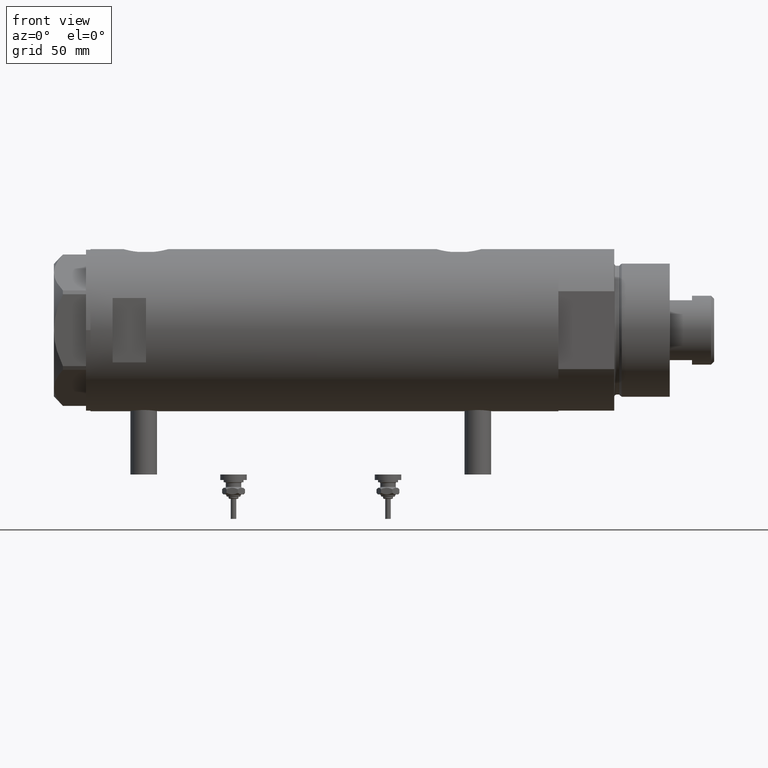
[diagram: clean part render]
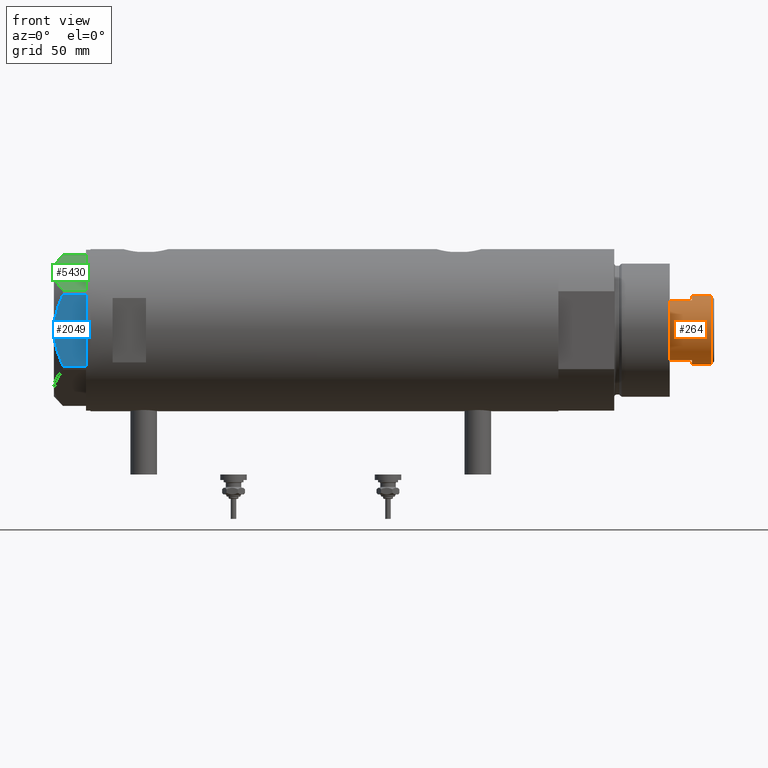
[diagram: same view with three faces highlighted in distinct colors, each labeled with its STEP entity id]
A machine part, front view with three faces highlighted in distinct colors.
Their STEP definitions:

[orange] entity #264 — the highlighted cylindrical surface (edge-blend (fillet) strip) has radius 15.5 mm, axis along (-1, -0, 0).
#187 = LINE ( 'NONE', #1136, #1697 ) ;
#191 = EDGE_CURVE ( 'NONE', #1009, #4470, #858, .T. ) ;
#217 = VECTOR ( 'NONE', #3174, 1000.000000000000000 ) ;
#255 = CIRCLE ( 'NONE', #645, 15.49999999999999822 ) ;
#264 = ADVANCED_FACE ( 'NONE', ( #2377 ), #2811, .T. ) ;
#346 = EDGE_CURVE ( 'NONE', #4959, #5789, #2402, .T. ) ;
#488 = CARTESIAN_POINT ( 'NONE',  ( -15.50000000000000178, 0.000000000000000000, 245.0000000000000284 ) ) ;
#508 = VECTOR ( 'NONE', #2057, 1000.000000000000000 ) ;
#544 = CARTESIAN_POINT ( 'NONE',  ( 0.000000000000000000, 0.000000000000000000, 245.0000000000000284 ) ) ;
#609 = DIRECTION ( 'NONE',  ( -0.000000000000000000, -0.000000000000000000, -1.000000000000000000 ) ) ;
#645 = AXIS2_PLACEMENT_3D ( 'NONE', #1828, #5411, #1319 ) ;
#812 = DIRECTION ( 'NONE',  ( 0.000000000000000000, 0.000000000000000000, 1.000000000000000000 ) ) ;
#858 = LINE ( 'NONE', #883, #217 ) ;
#883 = CARTESIAN_POINT ( 'NONE',  ( 15.49999999999999822, 1.898202538678397163E-15, 245.0000000000000284 ) ) ;
#914 = AXIS2_PLACEMENT_3D ( 'NONE', #5199, #1039, #2525 ) ;
#955 = CARTESIAN_POINT ( 'NONE',  ( 15.50000000000000178, 1.898202538678397557E-15, 245.0000000000000284 ) ) ;
#988 = DIRECTION ( 'NONE',  ( 0.000000000000000000, 0.000000000000000000, 1.000000000000000000 ) ) ;
#1009 = VERTEX_POINT ( 'NONE', #4589 ) ;
#1039 = DIRECTION ( 'NONE',  ( 0.000000000000000000, 0.000000000000000000, -1.000000000000000000 ) ) ;
#1068 = VERTEX_POINT ( 'NONE', #4780 ) ;
#1136 = CARTESIAN_POINT ( 'NONE',  ( -15.49999999999999822, 0.000000000000000000, 245.0000000000000284 ) ) ;
#1319 = DIRECTION ( 'NONE',  ( 1.000000000000000000, 0.000000000000000000, 0.000000000000000000 ) ) ;
#1387 = VERTEX_POINT ( 'NONE', #488 ) ;
#1686 = ORIENTED_EDGE ( 'NONE', *, *, #2953, .T. ) ;
#1697 = VECTOR ( 'NONE', #3334, 1000.000000000000000 ) ;
#1733 = EDGE_LOOP ( 'NONE', ( #4586, #3290, #1686, #4035, #2615, #2814, #3959, #5443 ) ) ;
#1782 = DIRECTION ( 'NONE',  ( 1.000000000000000000, 0.000000000000000000, 0.000000000000000000 ) ) ;
#1828 = CARTESIAN_POINT ( 'NONE',  ( 0.000000000000000000, 0.000000000000000000, 235.0000000000000284 ) ) ;
#2057 = DIRECTION ( 'NONE',  ( -0.000000000000000000, -0.000000000000000000, -1.000000000000000000 ) ) ;
#2377 = FACE_OUTER_BOUND ( 'NONE', #1733, .T. ) ;
#2402 = LINE ( 'NONE', #2946, #508 ) ;
#2525 = DIRECTION ( 'NONE',  ( 1.000000000000000000, 0.000000000000000000, 0.000000000000000000 ) ) ;
#2615 = ORIENTED_EDGE ( 'NONE', *, *, #346, .T. ) ;
#2647 = CIRCLE ( 'NONE', #914, 15.49999999999999822 ) ;
#2669 = CARTESIAN_POINT ( 'NONE',  ( 0.000000000000000000, 0.000000000000000000, 245.0000000000000284 ) ) ;
#2811 = CYLINDRICAL_SURFACE ( 'NONE', #4127, 15.49999999999999822 ) ;
#2814 = ORIENTED_EDGE ( 'NONE', *, *, #5308, .T. ) ;
#2917 = CARTESIAN_POINT ( 'NONE',  ( -15.49999999999999822, 0.000000000000000000, 253.5999999999999943 ) ) ;
#2946 = CARTESIAN_POINT ( 'NONE',  ( -13.48630416385452691, -7.640000000000001457, 245.0000000000000284 ) ) ;
#2953 = EDGE_CURVE ( 'NONE', #5240, #1387, #187, .T. ) ;
#3067 = EDGE_CURVE ( 'NONE', #1009, #5240, #2647, .T. ) ;
#3174 = DIRECTION ( 'NONE',  ( -0.000000000000000000, -0.000000000000000000, -1.000000000000000000 ) ) ;
#3266 = LINE ( 'NONE', #3754, #3528 ) ;
#3290 = ORIENTED_EDGE ( 'NONE', *, *, #3067, .T. ) ;
#3301 = AXIS2_PLACEMENT_3D ( 'NONE', #5023, #988, #1782 ) ;
#3334 = DIRECTION ( 'NONE',  ( -0.000000000000000000, -0.000000000000000000, -1.000000000000000000 ) ) ;
#3528 = VECTOR ( 'NONE', #609, 1000.000000000000000 ) ;
#3610 = VERTEX_POINT ( 'NONE', #4372 ) ;
#3738 = EDGE_CURVE ( 'NONE', #1387, #4959, #5909, .T. ) ;
#3754 = CARTESIAN_POINT ( 'NONE',  ( 13.48630416385453046, -7.639999999999995239, 245.0000000000000284 ) ) ;
#3839 = DIRECTION ( 'NONE',  ( -1.000000000000000000, 0.000000000000000000, 0.000000000000000000 ) ) ;
#3871 = EDGE_CURVE ( 'NONE', #3610, #4470, #4739, .T. ) ;
#3959 = ORIENTED_EDGE ( 'NONE', *, *, #5905, .F. ) ;
#4004 = DIRECTION ( 'NONE',  ( 1.000000000000000000, 0.000000000000000000, 0.000000000000000000 ) ) ;
#4035 = ORIENTED_EDGE ( 'NONE', *, *, #3738, .T. ) ;
#4044 = CARTESIAN_POINT ( 'NONE',  ( -13.48630416385452335, -7.640000000000004121, 245.0000000000000284 ) ) ;
#4057 = AXIS2_PLACEMENT_3D ( 'NONE', #2669, #812, #4004 ) ;
#4127 = AXIS2_PLACEMENT_3D ( 'NONE', #544, #4731, #3839 ) ;
#4372 = CARTESIAN_POINT ( 'NONE',  ( 13.48630416385453046, -7.639999999999995239, 245.0000000000000284 ) ) ;
#4470 = VERTEX_POINT ( 'NONE', #955 ) ;
#4586 = ORIENTED_EDGE ( 'NONE', *, *, #191, .F. ) ;
#4589 = CARTESIAN_POINT ( 'NONE',  ( 15.49999999999999822, 1.898202538678397163E-15, 253.5999999999999943 ) ) ;
#4731 = DIRECTION ( 'NONE',  ( -0.000000000000000000, -0.000000000000000000, -1.000000000000000000 ) ) ;
#4739 = CIRCLE ( 'NONE', #3301, 15.50000000000000000 ) ;
#4780 = CARTESIAN_POINT ( 'NONE',  ( 13.48630416385452691, -7.639999999999800728, 235.0000000000000284 ) ) ;
#4959 = VERTEX_POINT ( 'NONE', #4044 ) ;
#5023 = CARTESIAN_POINT ( 'NONE',  ( 0.000000000000000000, 0.000000000000000000, 245.0000000000000284 ) ) ;
#5199 = CARTESIAN_POINT ( 'NONE',  ( 0.000000000000000000, 0.000000000000000000, 253.5999999999999943 ) ) ;
#5240 = VERTEX_POINT ( 'NONE', #2917 ) ;
#5308 = EDGE_CURVE ( 'NONE', #5789, #1068, #255, .T. ) ;
#5411 = DIRECTION ( 'NONE',  ( 0.000000000000000000, 0.000000000000000000, 1.000000000000000000 ) ) ;
#5443 = ORIENTED_EDGE ( 'NONE', *, *, #3871, .T. ) ;
#5789 = VERTEX_POINT ( 'NONE', #5918 ) ;
#5905 = EDGE_CURVE ( 'NONE', #3610, #1068, #3266, .T. ) ;
#5909 = CIRCLE ( 'NONE', #4057, 15.50000000000000000 ) ;
#5918 = CARTESIAN_POINT ( 'NONE',  ( -13.48630416385452513, -7.639999999999807834, 235.0000000000000284 ) ) ;

[blue] entity #2049 — the highlighted planar face has unit normal (-0, 1, 0).
#67 = VERTEX_POINT ( 'NONE', #373 ) ;
#137 = EDGE_LOOP ( 'NONE', ( #4267, #5381, #244, #443, #3994 ) ) ;
#198 = CARTESIAN_POINT ( 'NONE',  ( -30.00000000000000000, -6.973771051792319042, 13.72753822183687511 ) ) ;
#244 = ORIENTED_EDGE ( 'NONE', *, *, #1064, .T. ) ;
#267 = CARTESIAN_POINT ( 'NONE',  ( -30.00000000000000711, 8.981118657900116986, 13.19130745470829247 ) ) ;
#287 = CARTESIAN_POINT ( 'NONE',  ( -29.99999999999999289, -15.56759648729806322, 10.70591879357992227 ) ) ;
#373 = CARTESIAN_POINT ( 'NONE',  ( -30.00000000000000000, -16.20050807568876294, 10.40518423703603901 ) ) ;
#443 = ORIENTED_EDGE ( 'NONE', *, *, #4907, .T. ) ;
#529 = EDGE_CURVE ( 'NONE', #2868, #3493, #597, .T. ) ;
#554 = CARTESIAN_POINT ( 'NONE',  ( -30.00000000000000000, 16.20050807568875584, 10.40518423703603546 ) ) ;
#597 = LINE ( 'NONE', #4239, #1008 ) ;
#687 = CARTESIAN_POINT ( 'NONE',  ( -29.99999999999999645, -2.827567415490778835, 14.37523681947611109 ) ) ;
#771 = CARTESIAN_POINT ( 'NONE',  ( -30.00000000000001421, 14.93680064777130312, 11.00564802993687508 ) ) ;
#900 = CARTESIAN_POINT ( 'NONE',  ( -29.99999999999999289, -14.92797448277034533, 10.99622797424084553 ) ) ;
#1000 = VERTEX_POINT ( 'NONE', #3674 ) ;
#1008 = VECTOR ( 'NONE', #3742, 1000.000000000000000 ) ;
#1064 = EDGE_CURVE ( 'NONE', #3493, #1000, #2448, .T. ) ;
#1098 = DIRECTION ( 'NONE',  ( 1.000000000000000000, 0.000000000000000000, -0.000000000000000000 ) ) ;
#1122 = CARTESIAN_POINT ( 'NONE',  ( -30.00000000000000000, -3.526431665117130798, 14.30125973663612626 ) ) ;
#1181 = CARTESIAN_POINT ( 'NONE',  ( -29.99999999999999289, -13.63320717147166405, 11.55272916346384804 ) ) ;
#1366 = CARTESIAN_POINT ( 'NONE',  ( -30.00000000000000000, 16.20050807568875584, 0.000000000000000000 ) ) ;
#1604 = VERTEX_POINT ( 'NONE', #2393 ) ;
#1654 = CARTESIAN_POINT ( 'NONE',  ( -30.00000000000000000, 11.66725319103952607, 12.31690447555093293 ) ) ;
#2003 = VECTOR ( 'NONE', #5211, 1000.000000000000000 ) ;
#2010 = FACE_OUTER_BOUND ( 'NONE', #137, .T. ) ;
#2049 = ADVANCED_FACE ( 'NONE', ( #2010 ), #5263, .F. ) ;
#2050 = CARTESIAN_POINT ( 'NONE',  ( -30.00000000000000355, -1.418661615092686290, 14.47469700449902952 ) ) ;
#2177 = AXIS2_PLACEMENT_3D ( 'NONE', #5200, #1098, #2405 ) ;
#2393 = CARTESIAN_POINT ( 'NONE',  ( -30.00000000000000000, 0.000000000000000000, 14.50000000000000000 ) ) ;
#2405 = DIRECTION ( 'NONE',  ( -0.000000000000000000, 0.000000000000000000, -1.000000000000000000 ) ) ;
#2448 = LINE ( 'NONE', #5740, #4242 ) ;
#2516 = CARTESIAN_POINT ( 'NONE',  ( -30.00000000000000000, -11.00230860792644982, 12.56933207488871673 ) ) ;
#2611 = LINE ( 'NONE', #3851, #2003 ) ;
#2713 = CARTESIAN_POINT ( 'NONE',  ( -30.00000000000000355, 13.64854889245356695, 11.56384586935411996 ) ) ;
#2868 = VERTEX_POINT ( 'NONE', #554 ) ;
#3451 = CARTESIAN_POINT ( 'NONE',  ( -30.00000000000000355, 10.99748736931232607, 12.55407623651775495 ) ) ;
#3493 = VERTEX_POINT ( 'NONE', #1366 ) ;
#3674 = CARTESIAN_POINT ( 'NONE',  ( -30.00000000000000000, -16.20050807568876294, 0.000000000000000000 ) ) ;
#3742 = DIRECTION ( 'NONE',  ( 0.000000000000000000, 0.000000000000000000, -1.000000000000000000 ) ) ;
#3851 = CARTESIAN_POINT ( 'NONE',  ( -30.00000000000000000, -16.20050807568876294, 14.50000000000000000 ) ) ;
#3927 = CARTESIAN_POINT ( 'NONE',  ( -30.00000000000000000, 5.593935073701701732, 14.09487059093540573 ) ) ;
#3994 = ORIENTED_EDGE ( 'NONE', *, *, #5436, .F. ) ;
#4203 = CARTESIAN_POINT ( 'NONE',  ( -30.00000000000000000, 0.000000000000000000, 14.50000000000000000 ) ) ;
#4239 = CARTESIAN_POINT ( 'NONE',  ( -30.00000000000000000, 16.20050807568875584, 14.50000000000000000 ) ) ;
#4242 = VECTOR ( 'NONE', #5701, 1000.000000000000000 ) ;
#4267 = ORIENTED_EDGE ( 'NONE', *, *, #5863, .F. ) ;
#4272 = CARTESIAN_POINT ( 'NONE',  ( -30.00000000000000000, -0.7060353153488233557, 14.49999999999999822 ) ) ;
#4308 = CARTESIAN_POINT ( 'NONE',  ( -29.99999999999999289, -5.607365453019637513, 14.01139032121647965 ) ) ;
#4318 = B_SPLINE_CURVE_WITH_KNOTS ( 'NONE', 3,
 ( #5759, #771, #2713, #1654, #3451, #4385, #267, #3927, #5580, #4203 ),
 .UNSPECIFIED., .F., .F.,
 ( 4, 2, 2, 2, 4 ),
 ( 0.04501738275285960267, 0.04922240792374713014, 0.05132492050919089388, 0.05342743309463465068, 0.06183748343640969869 ),
 .UNSPECIFIED. ) ;
#4337 = CARTESIAN_POINT ( 'NONE',  ( -29.99999999999999645, -12.97715359595204809, 11.81918444541430624 ) ) ;
#4385 = CARTESIAN_POINT ( 'NONE',  ( -30.00000000000000000, 9.655259153795977767, 12.99093232113973606 ) ) ;
#4787 = CARTESIAN_POINT ( 'NONE',  ( -30.00000000000000000, 0.000000000000000000, 14.50000000000000000 ) ) ;
#4907 = EDGE_CURVE ( 'NONE', #1000, #67, #2611, .T. ) ;
#5064 = B_SPLINE_CURVE_WITH_KNOTS ( 'NONE', 3,
 ( #4787, #4272, #2050, #687, #1122, #4308, #198, #5710, #2516, #4337, #1181, #900, #287, #5835 ),
 .UNSPECIFIED., .F., .F.,
 ( 4, 2, 2, 2, 2, 2, 4 ),
 ( 0.06183748343640969869, 0.06393495742991751885, 0.06603243142342535288, 0.07022737941044099319, 0.07442232739745664738, 0.07651980139096448141, 0.07861727538447230157 ),
 .UNSPECIFIED. ) ;
#5200 = CARTESIAN_POINT ( 'NONE',  ( -30.00000000000000000, 17.32050807568877460, 14.50000000000000000 ) ) ;
#5211 = DIRECTION ( 'NONE',  ( 0.000000000000000000, 0.000000000000000000, 1.000000000000000000 ) ) ;
#5263 = PLANE ( 'NONE',  #2177 ) ;
#5381 = ORIENTED_EDGE ( 'NONE', *, *, #529, .T. ) ;
#5436 = EDGE_CURVE ( 'NONE', #1604, #67, #5064, .T. ) ;
#5580 = CARTESIAN_POINT ( 'NONE',  ( -30.00000000000000711, 2.830925467268496476, 14.50000000000000533 ) ) ;
#5701 = DIRECTION ( 'NONE',  ( 0.000000000000000000, -1.000000000000000000, 0.000000000000000000 ) ) ;
#5710 = CARTESIAN_POINT ( 'NONE',  ( -29.99999999999999645, -9.671229349009038856, 13.00645148086949554 ) ) ;
#5740 = CARTESIAN_POINT ( 'NONE',  ( -30.00000000000000000, 17.32050807568877460, 0.000000000000000000 ) ) ;
#5759 = CARTESIAN_POINT ( 'NONE',  ( -30.00000000000000000, 16.20050807568875584, 10.40518423703603546 ) ) ;
#5835 = CARTESIAN_POINT ( 'NONE',  ( -30.00000000000000000, -16.20050807568876294, 10.40518423703603901 ) ) ;
#5863 = EDGE_CURVE ( 'NONE', #2868, #1604, #4318, .T. ) ;

[green] entity #5430 — the highlighted planar face has unit normal (-0, 0.5, -0.866).
#104 = CARTESIAN_POINT ( 'NONE',  ( -5.477433827011700451, -31.47861825688396564, 12.55468001512206300 ) ) ;
#145 = EDGE_CURVE ( 'NONE', #1968, #2461, #1587, .T. ) ;
#202 = CARTESIAN_POINT ( 'NONE',  ( -26.82462797925472842, -19.15380996664326219, 11.61522964162834626 ) ) ;
#361 = CARTESIAN_POINT ( 'NONE',  ( -0.9699484522385841689, -34.08101615137752560, 10.40518423703605322 ) ) ;
#363 = DIRECTION ( 'NONE',  ( -0.000000000000000000, 0.000000000000000000, -1.000000000000000000 ) ) ;
#388 = EDGE_CURVE ( 'NONE', #3693, #4870, #1096, .T. ) ;
#693 = CARTESIAN_POINT ( 'NONE',  ( -24.56959650245797988, -20.45575299680293568, 12.63511531451932512 ) ) ;
#733 = DIRECTION ( 'NONE',  ( 0.8660254037844387076, -0.4999999999999997780, 0.000000000000000000 ) ) ;
#913 = ORIENTED_EDGE ( 'NONE', *, *, #4005, .T. ) ;
#1010 = CARTESIAN_POINT ( 'NONE',  ( -6.639151835533460222, -30.80790005194150183, 12.99122625442232604 ) ) ;
#1096 = LINE ( 'NONE', #3926, #1498 ) ;
#1225 = CARTESIAN_POINT ( 'NONE',  ( -21.07077273125423744, -22.47579984295447630, 13.71922620632299150 ) ) ;
#1280 = CARTESIAN_POINT ( 'NONE',  ( -2.073315687465953960, -33.44398678110400169, 11.01056656432686509 ) ) ;
#1281 = CARTESIAN_POINT ( 'NONE',  ( -15.61187731150016411, -25.62749458302751648, 14.50000000000000355 ) ) ;
#1422 = VECTOR ( 'NONE', #5176, 1000.000000000000000 ) ;
#1473 = CARTESIAN_POINT ( 'NONE',  ( -10.17780078270465616, -28.76486012972462447, 14.10092492974135148 ) ) ;
#1498 = VECTOR ( 'NONE', #733, 1000.000000000000227 ) ;
#1507 = CARTESIAN_POINT ( 'NONE',  ( -14.99999999999999645, -25.98076211353316367, 14.50000000000000000 ) ) ;
#1549 = VERTEX_POINT ( 'NONE', #3566 ) ;
#1587 = B_SPLINE_CURVE_WITH_KNOTS ( 'NONE', 3,
 ( #3925, #202, #693, #1225, #5782, #1616, #4791, #1711, #1281, #2625 ),
 .UNSPECIFIED., .F., .F.,
 ( 4, 2, 2, 2, 4 ),
 ( 0.001230196178133391958, 0.009592363676680756152, 0.01377344742595443955, 0.01586398930059127951, 0.01795453117522812295 ),
 .UNSPECIFIED. ) ;
#1616 = CARTESIAN_POINT ( 'NONE',  ( -18.07068105770097688, -24.20790357827401351, 14.29910535634586921 ) ) ;
#1710 = CARTESIAN_POINT ( 'NONE',  ( -0.9699484522385850571, -34.08101615137752560, 14.50000000000000000 ) ) ;
#1711 = CARTESIAN_POINT ( 'NONE',  ( -16.22616138060132940, -25.27283751037305137, 14.47500996539161910 ) ) ;
#1861 = CARTESIAN_POINT ( 'NONE',  ( -14.99999999999999645, -25.98076211353316367, 14.50000000000000000 ) ) ;
#1955 = CARTESIAN_POINT ( 'NONE',  ( -4.902385341342997194, -31.81062265488187535, 12.31959434659020758 ) ) ;
#1968 = VERTEX_POINT ( 'NONE', #4701 ) ;
#2352 = CARTESIAN_POINT ( 'NONE',  ( -12.56968319190124639, -27.38390617690504669, 14.50000000000000711 ) ) ;
#2458 = DIRECTION ( 'NONE',  ( 0.4999999999999998335, 0.8660254037844388186, -0.000000000000000000 ) ) ;
#2461 = VERTEX_POINT ( 'NONE', #1507 ) ;
#2480 = CARTESIAN_POINT ( 'NONE',  ( -0.9699484522385886098, -34.08101615137752560, 0.000000000000000000 ) ) ;
#2625 = CARTESIAN_POINT ( 'NONE',  ( -14.99999999999999645, -25.98076211353316367, 14.50000000000000000 ) ) ;
#2898 = FACE_OUTER_BOUND ( 'NONE', #5823, .T. ) ;
#3369 = DIRECTION ( 'NONE',  ( -0.8660254037844387076, 0.4999999999999997780, 0.000000000000000000 ) ) ;
#3443 = CARTESIAN_POINT ( 'NONE',  ( -30.00000000000000000, -17.32050807568877460, 14.50000000000000000 ) ) ;
#3472 = ORIENTED_EDGE ( 'NONE', *, *, #388, .T. ) ;
#3566 = CARTESIAN_POINT ( 'NONE',  ( -0.9699484522385841689, -34.08101615137752560, 10.40518423703605322 ) ) ;
#3693 = VERTEX_POINT ( 'NONE', #4906 ) ;
#3901 = CARTESIAN_POINT ( 'NONE',  ( -29.03005154776141339, -17.88050807568878042, 14.50000000000000000 ) ) ;
#3925 = CARTESIAN_POINT ( 'NONE',  ( -29.03005154776157326, -17.88050807568868805, 10.40518423703595374 ) ) ;
#3926 = CARTESIAN_POINT ( 'NONE',  ( -30.00000000000000000, -17.32050807568877460, 0.000000000000000000 ) ) ;
#3931 = ORIENTED_EDGE ( 'NONE', *, *, #4676, .T. ) ;
#4005 = EDGE_CURVE ( 'NONE', #1968, #3693, #4472, .T. ) ;
#4472 = LINE ( 'NONE', #3901, #5824 ) ;
#4588 = EDGE_CURVE ( 'NONE', #2461, #1549, #5090, .T. ) ;
#4676 = EDGE_CURVE ( 'NONE', #4870, #1549, #4914, .T. ) ;
#4701 = CARTESIAN_POINT ( 'NONE',  ( -29.03005154776157326, -17.88050807568868805, 10.40518423703595374 ) ) ;
#4791 = CARTESIAN_POINT ( 'NONE',  ( -17.45962150578836258, -24.56069897506165489, 14.37423503257922164 ) ) ;
#4815 = PLANE ( 'NONE',  #5924 ) ;
#4847 = ORIENTED_EDGE ( 'NONE', *, *, #4588, .F. ) ;
#4870 = VERTEX_POINT ( 'NONE', #2480 ) ;
#4906 = CARTESIAN_POINT ( 'NONE',  ( -29.03005154776141339, -17.88050807568878042, 0.000000000000000000 ) ) ;
#4914 = LINE ( 'NONE', #1710, #1422 ) ;
#5090 = B_SPLINE_CURVE_WITH_KNOTS ( 'NONE', 3,
 ( #1861, #2352, #1473, #5104, #1010, #104, #1955, #5843, #1280, #361 ),
 .UNSPECIFIED., .F., .F.,
 ( 4, 2, 2, 2, 4 ),
 ( 0.01795453117522812295, 0.02625795893839792672, 0.02833381587919037853, 0.03040967281998283034, 0.03456138670156772702 ),
 .UNSPECIFIED. ) ;
#5104 = CARTESIAN_POINT ( 'NONE',  ( -7.227334865371702222, -30.46831242133162476, 13.19311392138147276 ) ) ;
#5176 = DIRECTION ( 'NONE',  ( 0.000000000000000000, 0.000000000000000000, 1.000000000000000000 ) ) ;
#5430 = ADVANCED_FACE ( 'NONE', ( #2898 ), #4815, .F. ) ;
#5685 = ORIENTED_EDGE ( 'NONE', *, *, #145, .F. ) ;
#5782 = CARTESIAN_POINT ( 'NONE',  ( -19.88494945387373747, -23.16043523136143278, 14.00566141361761119 ) ) ;
#5823 = EDGE_LOOP ( 'NONE', ( #5685, #913, #3472, #3931, #4847 ) ) ;
#5824 = VECTOR ( 'NONE', #363, 1000.000000000000000 ) ;
#5843 = CARTESIAN_POINT ( 'NONE',  ( -3.192653970405496811, -32.79773652213460622, 11.56973717813738745 ) ) ;
#5924 = AXIS2_PLACEMENT_3D ( 'NONE', #3443, #2458, #3369 ) ;